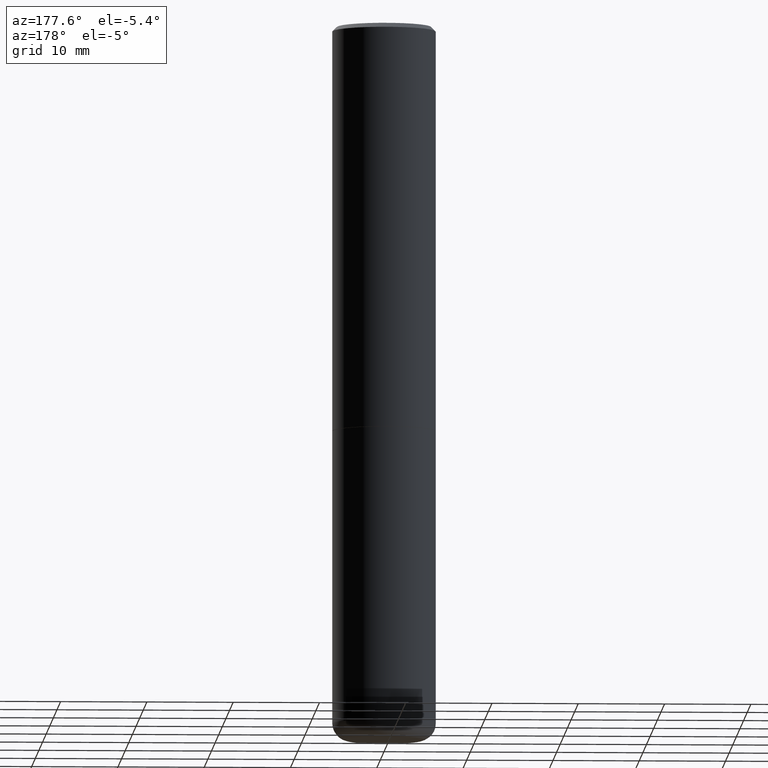
[diagram: clean part render]
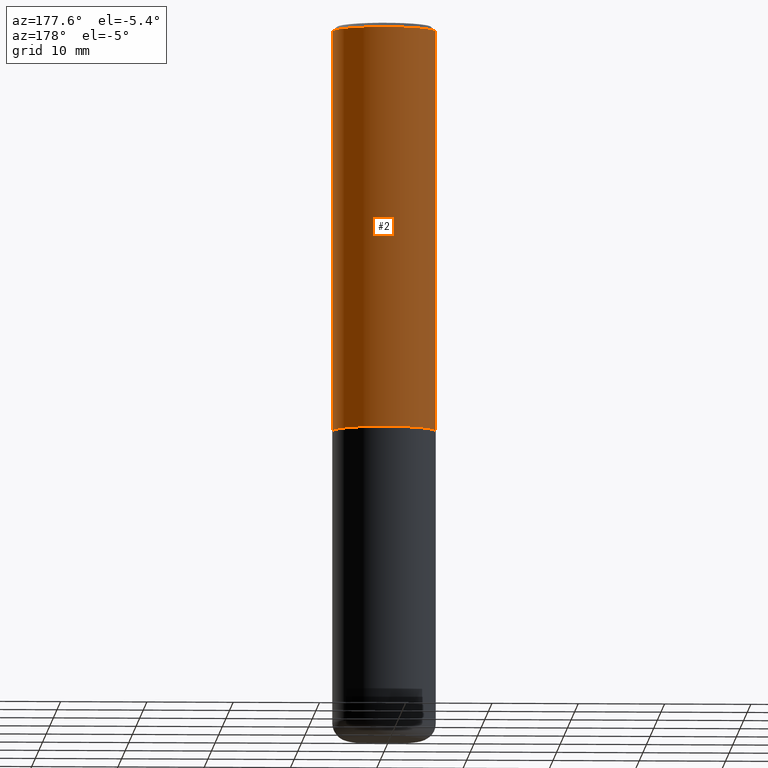
[diagram: same view with one face highlighted and labeled with its STEP entity id]
A machine part, auxiliary view. The second image highlights one B-rep face of the part: STEP entity #2.
In plain terms, the highlighted cylindrical surface (partial cylindrical patch) has radius 5.9995 mm, axis along (-0, 0, 1).
Its self-contained STEP definition (entity closure, byte-faithful):
#2 = ADVANCED_FACE ( 'NONE', ( #153 ), #278, .T. ) ;
#9 = CARTESIAN_POINT ( 'NONE',  ( 4.522650010158792351E-29, -6.457145588056513780E-15, -1.849400000000000155 ) ) ;
#12 = LINE ( 'NONE', #210, #63 ) ;
#25 = VERTEX_POINT ( 'NONE', #34 ) ;
#27 = ORIENTED_EDGE ( 'NONE', *, *, #315, .F. ) ;
#34 = CARTESIAN_POINT ( 'NONE',  ( -0.2362000000000002431, -1.585185665551328595E-15, -1.849400000000000155 ) ) ;
#44 = EDGE_CURVE ( 'NONE', #275, #25, #202, .T. ) ;
#63 = VECTOR ( 'NONE', #266, 39.37007874015748143 ) ;
#74 = EDGE_CURVE ( 'NONE', #205, #263, #142, .T. ) ;
#75 = CARTESIAN_POINT ( 'NONE',  ( 0.2361999999999999378, -1.690279253850498377E-15, -0.02000000000000005246 ) ) ;
#89 = LINE ( 'NONE', #232, #292 ) ;
#93 = DIRECTION ( 'NONE',  ( -2.445468806185136597E-29, 3.491481338843145583E-15, 1.000000000000000000 ) ) ;
#95 = DIRECTION ( 'NONE',  ( -2.445468806185136597E-29, 3.491481338843145583E-15, 1.000000000000000000 ) ) ;
#100 = CARTESIAN_POINT ( 'NONE',  ( 4.890937612370285420E-31, -6.982962677686308865E-17, -0.02000000000000005246 ) ) ;
#142 = CIRCLE ( 'NONE', #281, 0.2361999999999999378 ) ;
#153 = FACE_OUTER_BOUND ( 'NONE', #209, .T. ) ;
#189 = DIRECTION ( 'NONE',  ( -2.445468806185136597E-29, 3.491481338843145583E-15, 1.000000000000000000 ) ) ;
#195 = DIRECTION ( 'NONE',  ( -2.445468806185136877E-29, 3.491481338843145188E-15, 1.000000000000000000 ) ) ;
#202 = CIRCLE ( 'NONE', #307, 0.2362000000000002153 ) ;
#205 = VERTEX_POINT ( 'NONE', #75 ) ;
#209 = EDGE_LOOP ( 'NONE', ( #240, #383, #236, #27 ) ) ;
#210 = CARTESIAN_POINT ( 'NONE',  ( 0.2362000000000000766, -1.649375784469496722E-15, 1.151752954443000368E-29 ) ) ;
#220 = DIRECTION ( 'NONE',  ( 1.000000000000000000, -6.982962677686266711E-15, 4.876176775795935793E-29 ) ) ;
#232 = CARTESIAN_POINT ( 'NONE',  ( -0.2362000000000000766, 1.678301941865357183E-15, -1.161852468318209177E-29 ) ) ;
#236 = ORIENTED_EDGE ( 'NONE', *, *, #74, .F. ) ;
#240 = ORIENTED_EDGE ( 'NONE', *, *, #44, .T. ) ;
#260 = CARTESIAN_POINT ( 'NONE',  ( -0.2361999999999999378, 1.579546157692632635E-15, -0.02000000000000005246 ) ) ;
#263 = VERTEX_POINT ( 'NONE', #260 ) ;
#266 = DIRECTION ( 'NONE',  ( -2.445468806185136877E-29, 3.491481338843145188E-15, 1.000000000000000000 ) ) ;
#268 = AXIS2_PLACEMENT_3D ( 'NONE', #354, #95, #220 ) ;
#275 = VERTEX_POINT ( 'NONE', #373 ) ;
#278 = CYLINDRICAL_SURFACE ( 'NONE', #268, 0.2362000000000000766 ) ;
#281 = AXIS2_PLACEMENT_3D ( 'NONE', #100, #189, #363 ) ;
#292 = VECTOR ( 'NONE', #195, 39.37007874015748143 ) ;
#307 = AXIS2_PLACEMENT_3D ( 'NONE', #9, #93, #352 ) ;
#315 = EDGE_CURVE ( 'NONE', #275, #205, #12, .T. ) ;
#317 = EDGE_CURVE ( 'NONE', #25, #263, #89, .T. ) ;
#352 = DIRECTION ( 'NONE',  ( 1.000000000000000000, -6.982962677686266711E-15, 0.000000000000000000 ) ) ;
#354 = CARTESIAN_POINT ( 'NONE',  ( 0.000000000000000000, 0.000000000000000000, 0.000000000000000000 ) ) ;
#363 = DIRECTION ( 'NONE',  ( 1.000000000000000000, -6.982962677686266711E-15, 0.000000000000000000 ) ) ;
#373 = CARTESIAN_POINT ( 'NONE',  ( 0.2362000000000002153, -8.106521372526011094E-15, -1.849400000000000155 ) ) ;
#383 = ORIENTED_EDGE ( 'NONE', *, *, #317, .T. ) ;